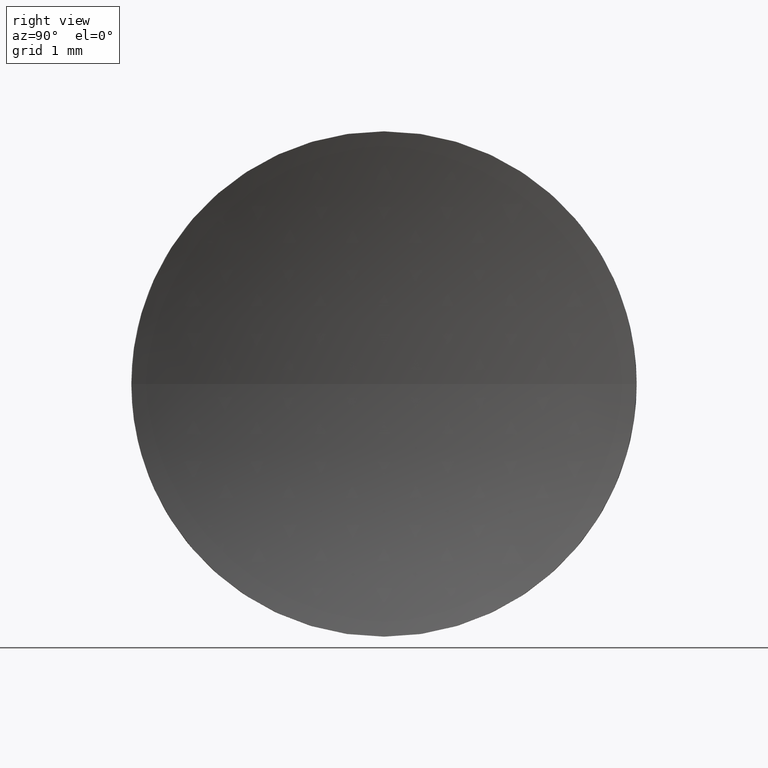
[diagram: clean part render]
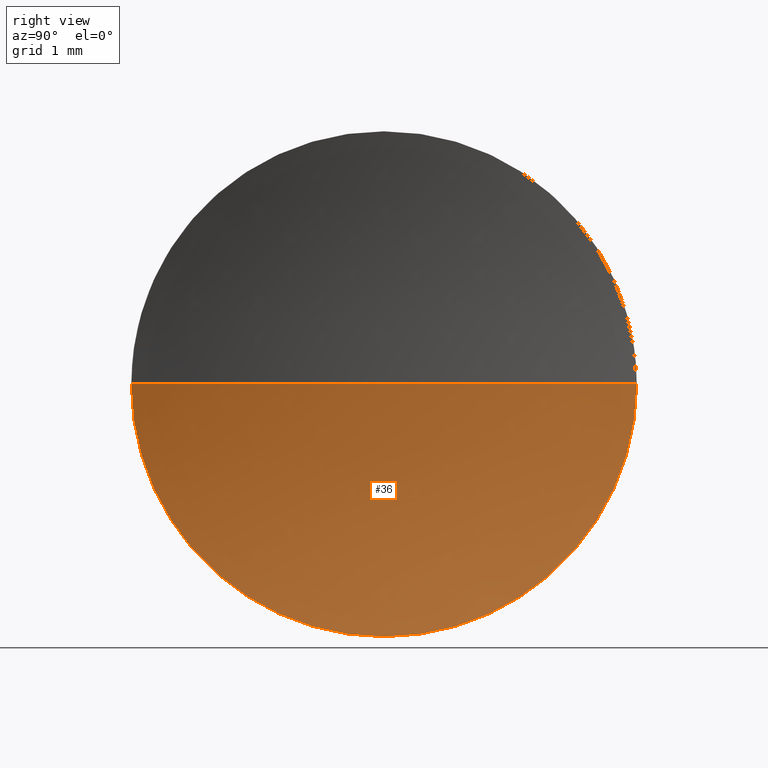
[diagram: same view with one face highlighted and labeled with its STEP entity id]
A machine part, right view. The second image highlights one B-rep face of the part: STEP entity #36.
In plain terms, the highlighted spherical surface has radius 11.46 mm.
Its self-contained STEP definition (entity closure, byte-faithful):
#2 = DIRECTION ( 'NONE',  ( 0.0000000000000000000, 0.0000000000000000000, -1.000000000000000000 ) ) ;
#11 = ORIENTED_EDGE ( 'NONE', *, *, #20, .T. ) ;
#12 = EDGE_CURVE ( 'NONE', #88, #78, #30, .T. ) ;
#17 = CARTESIAN_POINT ( 'NONE',  ( 24.14229572597543300, 9.881126091403055900, 0.0000000000000000000 ) ) ;
#18 = DIRECTION ( 'NONE',  ( 0.0000000000000000000, 0.0000000000000000000, 1.000000000000000000 ) ) ;
#20 = EDGE_CURVE ( 'NONE', #55, #78, #56, .T. ) ;
#23 = VERTEX_POINT ( 'NONE', #158 ) ;
#27 = CARTESIAN_POINT ( 'NONE',  ( 35.16087548926616100, 13.03112609140305100, 0.0000000000000000000 ) ) ;
#29 = DIRECTION ( 'NONE',  ( -1.000000000000000000, -0.0000000000000000000, -0.0000000000000000000 ) ) ;
#30 = CIRCLE ( 'NONE', #45, 11.45999999999999700 ) ;
#31 = CARTESIAN_POINT ( 'NONE',  ( 35.16087548926616100, 13.03112609140305100, 0.0000000000000000000 ) ) ;
#36 = ADVANCED_FACE ( 'NONE', ( #185 ), #180, .F. ) ;
#37 = EDGE_CURVE ( 'NONE', #55, #23, #132, .T. ) ;
#43 = AXIS2_PLACEMENT_3D ( 'NONE', #91, #65, #94 ) ;
#45 = AXIS2_PLACEMENT_3D ( 'NONE', #31, #2, #76 ) ;
#55 = VERTEX_POINT ( 'NONE', #116 ) ;
#56 = CIRCLE ( 'NONE', #151, 11.45999999999999700 ) ;
#65 = DIRECTION ( 'NONE',  ( 0.0000000000000000000, 0.0000000000000000000, 1.000000000000000000 ) ) ;
#68 = CARTESIAN_POINT ( 'NONE',  ( 23.70087548926616700, 13.03112609140305100, 0.0000000000000000000 ) ) ;
#72 = ORIENTED_EDGE ( 'NONE', *, *, #150, .F. ) ;
#76 = DIRECTION ( 'NONE',  ( -1.000000000000000000, 0.0000000000000000000, 0.0000000000000000000 ) ) ;
#78 = VERTEX_POINT ( 'NONE', #68 ) ;
#83 = EDGE_LOOP ( 'NONE', ( #124, #11, #118, #72 ) ) ;
#85 = CIRCLE ( 'NONE', #112, 3.149999999999998100 ) ;
#88 = VERTEX_POINT ( 'NONE', #17 ) ;
#91 = CARTESIAN_POINT ( 'NONE',  ( 35.16087548926616100, 13.03112609140305100, 0.0000000000000000000 ) ) ;
#92 = DIRECTION ( 'NONE',  ( 0.0000000000000000000, -1.224646799147353200E-016, 1.000000000000000000 ) ) ;
#94 = DIRECTION ( 'NONE',  ( 0.0000000000000000000, -1.000000000000000000, 0.0000000000000000000 ) ) ;
#104 = DIRECTION ( 'NONE',  ( -1.000000000000000000, -0.0000000000000000000, -0.0000000000000000000 ) ) ;
#112 = AXIS2_PLACEMENT_3D ( 'NONE', #174, #104, #18 ) ;
#116 = CARTESIAN_POINT ( 'NONE',  ( 24.14229572597543300, 16.18112609140303300, 3.857637417314144400E-016 ) ) ;
#118 = ORIENTED_EDGE ( 'NONE', *, *, #12, .F. ) ;
#124 = ORIENTED_EDGE ( 'NONE', *, *, #37, .F. ) ;
#132 = CIRCLE ( 'NONE', #156, 3.149999999999998100 ) ;
#133 = DIRECTION ( 'NONE',  ( 0.0000000000000000000, 0.0000000000000000000, 1.000000000000000000 ) ) ;
#147 = DIRECTION ( 'NONE',  ( 0.0000000000000000000, -1.000000000000000000, -1.224646799147353200E-016 ) ) ;
#150 = EDGE_CURVE ( 'NONE', #23, #88, #85, .T. ) ;
#151 = AXIS2_PLACEMENT_3D ( 'NONE', #27, #92, #147 ) ;
#156 = AXIS2_PLACEMENT_3D ( 'NONE', #173, #29, #133 ) ;
#158 = CARTESIAN_POINT ( 'NONE',  ( 24.14229572597543000, 13.03112609140304000, -3.149999999999998100 ) ) ;
#173 = CARTESIAN_POINT ( 'NONE',  ( 24.14229572597543000, 13.03112609140304000, 0.0000000000000000000 ) ) ;
#174 = CARTESIAN_POINT ( 'NONE',  ( 24.14229572597543000, 13.03112609140304000, 0.0000000000000000000 ) ) ;
#180 = SPHERICAL_SURFACE ( 'NONE', #43, 11.45999999999999700 ) ;
#185 = FACE_OUTER_BOUND ( 'NONE', #83, .T. ) ;